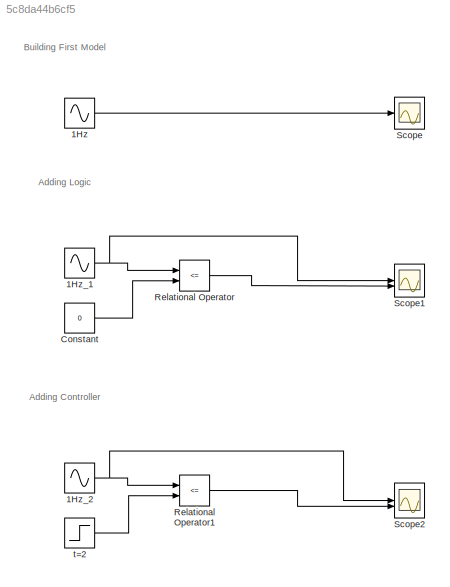
MODEL slx_5c8da44b6cf5
KIND model
CONFIG AbsTol = auto
CONFIG EnableMultiTasking = off
CONFIG FixedStep = auto
CONFIG MaxStep = auto
CONFIG MinStep = auto
CONFIG RelTol = 1e-3
CONFIG SampleTimeConstraint = Unconstrained
CONFIG SolverName = VariableStepAuto
CONFIG StartTime = 0.0
CONFIG StopTime = 10.0
BLOCK [Sin] 1Hz
  Frequency = 2*pi*1
  SampleTime = 0
BLOCK [Sin] 1Hz_1
  Frequency = 2*pi*1
  SampleTime = 0
BLOCK [Sin] 1Hz_2
  Frequency = 2*pi*1
  SampleTime = 0
BLOCK [Constant] Constant
  Value = 0
BLOCK [RelationalOperator] Relational Operator
  InputSameDT = off
  Operator = <=
  OutDataTypeStr = boolean
  RndMeth = Simplest
BLOCK [RelationalOperator] Relational Operator1
  InputSameDT = off
  Operator = <=
  OutDataTypeStr = boolean
  RndMeth = Simplest
BLOCK [Scope] Scope
  Floating = off
  NumInputPorts = 1
  ScopeSpecificationString = Simulink.scopes.TimeScopeBlockCfg('CurrentConfiguration', extmgr.ConfigurationSet(extmgr.Configuration('Core','General UI',true),extmgr.Configuration('Core','Source UI',true),extmgr.Configuration('Sources','WiredSimulink',true),extmgr.Configuration('Visuals','Time Domain',true,'SerializedDisplays',{struct('MinYLimReal','-1.18882','MaxYLimReal','1.18882','YLabelReal','','MinYLimMag','0.00000','MaxY...<+1323ch>
BLOCK [Scope] Scope1
  Floating = off
  NumInputPorts = 2
  ScopeSpecificationString = Simulink.scopes.TimeScopeBlockCfg('CurrentConfiguration', extmgr.ConfigurationSet(extmgr.Configuration('Core','General UI',true),extmgr.Configuration('Core','Source UI',true),extmgr.Configuration('Sources','WiredSimulink',true,'DataLoggingVariableName','ScopeData1'),extmgr.Configuration('Visuals','Time Domain',true,'SerializedDisplays',{struct('MinYLimReal','-1.19494','MaxYLimReal','1.24388','YLab...<+1420ch>
BLOCK [Scope] Scope2
  Floating = off
  NumInputPorts = 2
  ScopeSpecificationString = Simulink.scopes.TimeScopeBlockCfg('CurrentConfiguration', extmgr.ConfigurationSet(extmgr.Configuration('Core','General UI',true),extmgr.Configuration('Core','Source UI',true),extmgr.Configuration('Sources','WiredSimulink',true,'DataLoggingVariableName','ScopeData2'),extmgr.Configuration('Visuals','Time Domain',true,'SerializedDisplays',{struct('MinYLimReal','-1.19494','MaxYLimReal','1.24388','YLab...<+1468ch>
BLOCK [Step] t=2
  SampleTime = 0
  Time = 2
ANNOTATION (root): Adding Controller
ANNOTATION (root): Adding Logic
ANNOTATION (root): Building First Model
LINE 1Hz:1 -> Scope:1
NET 1Hz_1:1 -> Relational Operator:1, Scope1:1
NET 1Hz_2:1 -> Relational Operator1:1, Scope2:1
LINE Constant:1 -> Relational Operator:2
LINE Relational Operator1:1 -> Scope2:2
LINE Relational Operator:1 -> Scope1:2
LINE t=2:1 -> Relational Operator1:2
note: NET lines group one-source signal fan-out (src -> all destinations, sorted); 1:1 wires keep LINE
